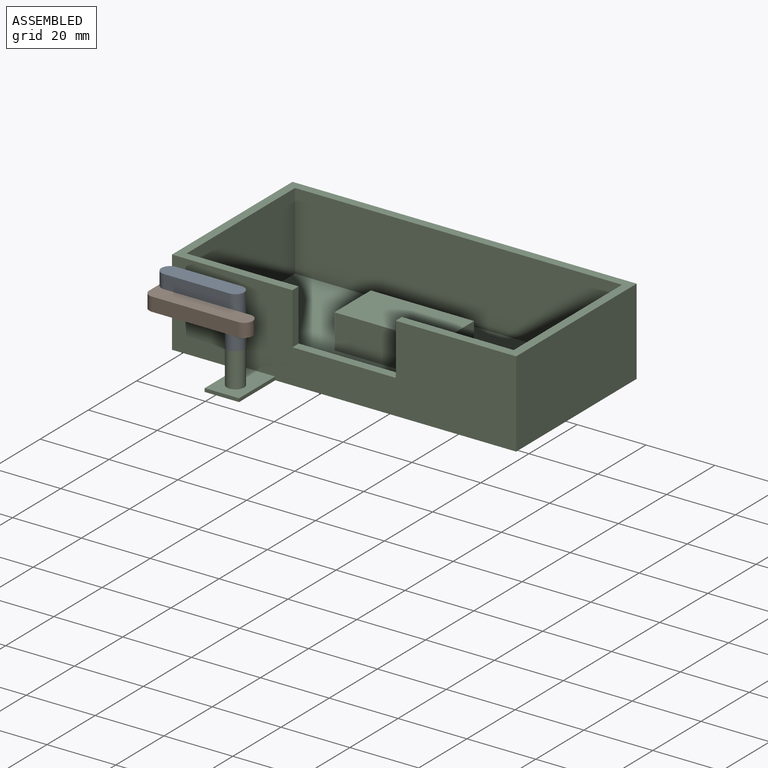
[diagram: assembled view]
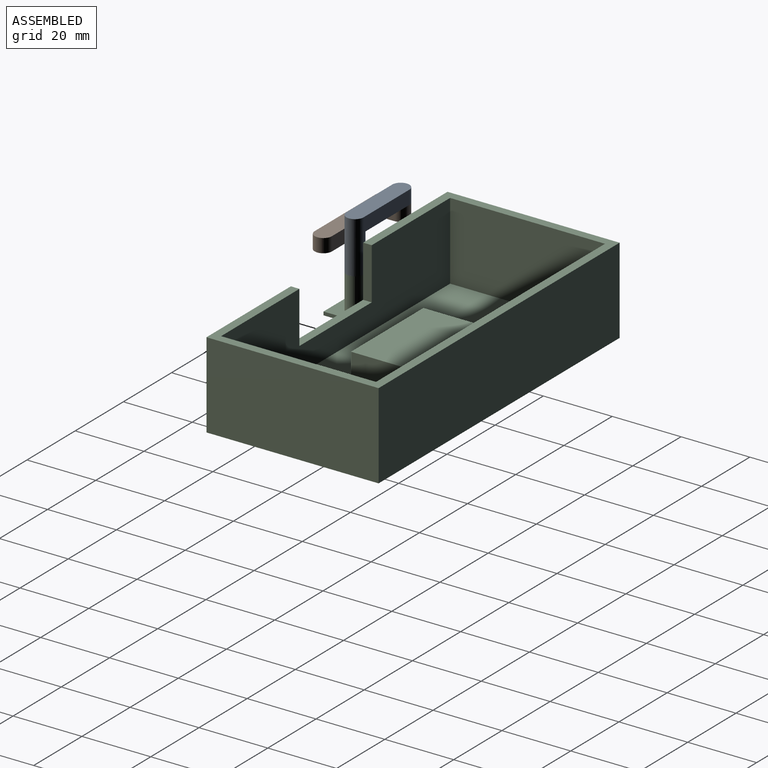
[diagram: assembled view, second angle]
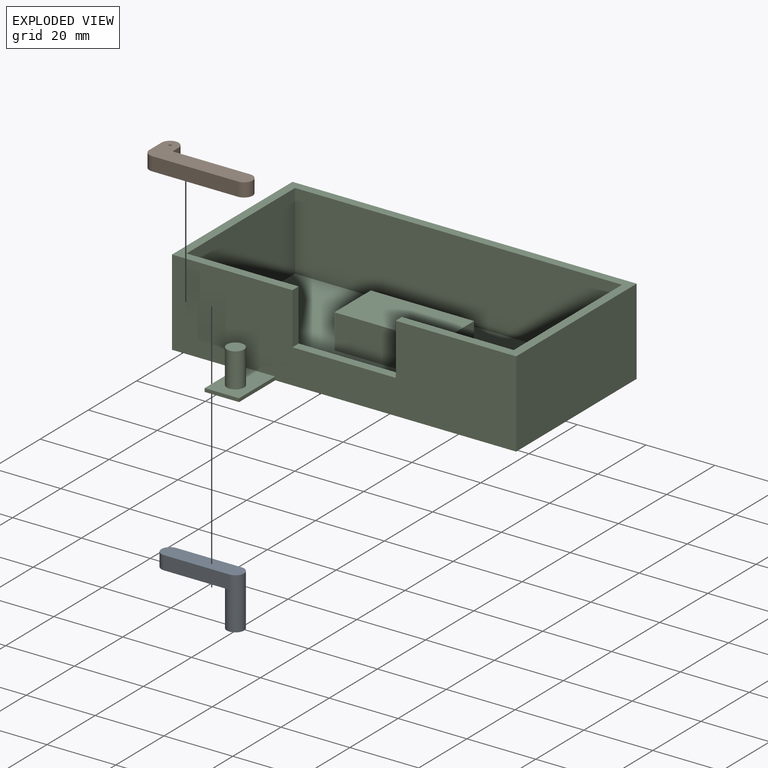
[diagram: exploded view]
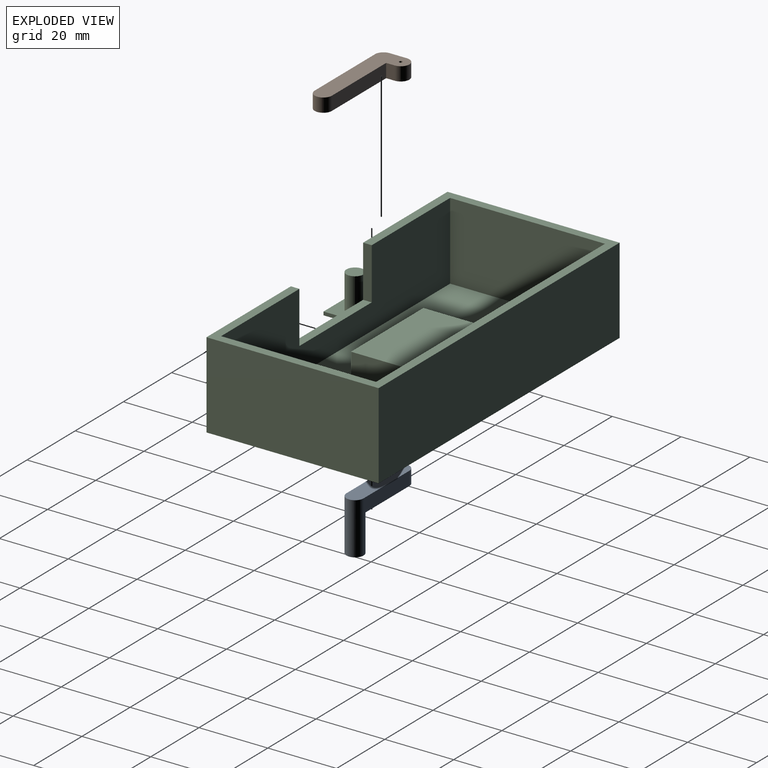
[diagram: exploded view, second angle]
ASSEMBLY  parts=3 mates=2
PART A: 7 faces, bbox 24x5x15 mm
  f0: cylinder r=2.5mm len=15mm, axis (0,0,-1), area 204.2mm2, adj f1,f2,f3,f4,f5
  f1: plane 24x5mm, normal (0,0,1), area 114.6mm2, adj f0,f3,f5,f6
  f2: plane 5x5mm, normal (0,0,-1), area 19.6mm2, adj f0
  f3: plane 19x4mm, normal (0,-1,0), area 76mm2, adj f0,f1,f4,f6
  f4: plane 21.5x5mm, normal (0,0,-1), area 95mm2, adj f0,f3,f5,f6
  f5: plane 19x4mm, normal (0,1,0), area 76mm2, adj f0,f1,f4,f6
  f6: cylinder r=2.5mm len=5mm, axis (0,0,-1), area 31.4mm2, adj f1,f3,f4,f5
PART B: 10 faces, bbox 10x4x30 mm
  f0: plane 22.5x4mm, normal (-1,0,0), area 90mm2, adj f1,f4,f5,f7
  f1: plane 4x2.5mm, normal (0,0,1), area 10mm2, adj f0,f4,f5,f6
  f2: plane 5x4mm, normal (0,0,-1), area 20mm2, adj f4,f5,f6,f9
  f3: plane 25x4mm, normal (1,0,0), area 100mm2, adj f4,f5,f7,f9
  f4: plane 30x10mm, normal (0,-1,0), area 167.7mm2, adj f0,f1,f2,f3,f6,f7,f8,f9
  f5: plane 30x10mm, normal (0,1,0), area 167.7mm2, adj f0,f1,f2,f3,f6,f7,f8,f9
  f6: cylinder r=2.5mm len=5mm, axis (0,1,0), area 31.4mm2, adj f1,f2,f4,f5
  f7: cylinder r=2.5mm len=5mm, axis (0,1,0), area 31.4mm2, adj f0,f3,f4,f5
  f8: cylinder r=0.44mm len=4mm, axis (0,-1,0), area 11.1mm2, adj f4,f5
  f9: cylinder r=2.5mm len=4mm, axis (0,1,0), area 15.7mm2, adj f2,f3,f4,f5
PART C: 25 faces, bbox 100x65x25 mm
  f0: plane 100x50mm, normal (0,0,1), area 650mm2, adj f1,f2,f3,f4,f6,f7,f8,f9
  f1: plane 100x25mm, normal (0,-1,0), area 2040mm2, adj f0,f3,f4,f5,f11,f12,f13,f19
  f2: plane 100x25mm, normal (0,1,0), area 2500mm2, adj f0,f3,f4,f5
  f3: plane 50x25mm, normal (-1,0,0), area 1250mm2, adj f0,f1,f2,f5
  f4: plane 50x25mm, normal (1,0,0), area 1250mm2, adj f0,f1,f2,f5
  f5: plane 100x65mm, normal (0,0,-1), area 5150mm2, adj f1,f2,f3,f4,f19,f20,f22
  f6: plane 95x22.5mm, normal (0,-1,0), area 2137.5mm2, adj f0,f7,f9,f10
  f7: plane 45x22.5mm, normal (1,0,0), area 1012.5mm2, adj f0,f6,f8,f10
  f8: plane 95x22.5mm, normal (0,1,0), area 1687.5mm2, adj f0,f7,f9,f10,f11,f12,f13
  f9: plane 45x22.5mm, normal (-1,0,0), area 1012.5mm2, adj f0,f6,f8,f10
  f10: plane 95x45mm, normal (0,0,1), area 3825mm2, adj f6,f7,f8,f9,f14,f15,f16,f17
  f11: plane 15x2.5mm, normal (1,0,0), area 37.5mm2, adj f0,f1,f8,f12
  f12: plane 30x2.5mm, normal (0,0,1), area 75mm2, adj f1,f8,f11,f13
  f13: plane 15x2.5mm, normal (-1,0,0), area 37.5mm2, adj f0,f1,f8,f12
  f14: plane 30x10mm, normal (0,1,0), area 300mm2, adj f10,f15,f17,f18
  f15: plane 15x10mm, normal (-1,0,0), area 150mm2, adj f10,f14,f16,f18
  f16: plane 30x10mm, normal (0,-1,0), area 300mm2, adj f10,f15,f17,f18
  f17: plane 15x10mm, normal (1,0,0), area 150mm2, adj f10,f14,f16,f18
  f18: plane 30x15mm, normal (0,0,1), area 450mm2, adj f14,f15,f16,f17
  f19: plane 15x1mm, normal (-1,0,0), area 15mm2, adj f1,f5,f21,f22
  f20: plane 15x1mm, normal (1,0,0), area 15mm2, adj f1,f5,f21,f22
  f21: plane 15x10mm, normal (0,0,1), area 130.4mm2, adj f1,f19,f20,f22,f23
  f22: plane 10x1mm, normal (0,-1,0), area 10mm2, adj f5,f19,f20,f21
  f23: cylinder r=2.5mm len=10mm, axis (0,0,-1), area 157.1mm2, adj f21,f24
  f24: plane 5x5mm, normal (0,0,1), area 19.6mm2, adj f23
PLACE A rot(axis=(0,0,1),180deg) t=(-38.64,-23.72,7.54)mm
PLACE B rot(axis=(-0.58,0.58,-0.58),120deg) t=(-75.31,-26.22,14.54)mm
PLACE C t=(-13.64,10.65,-3.46)mm fixed
MATE revolute A.f0 <-> C.f23  axis (0,0,-1) through (-38.64,-23.72,7.54)mm
MATE revolute B.f6 <-> A.f6  axis (0,0,1) through (-57.64,-23.72,18.54)mm
